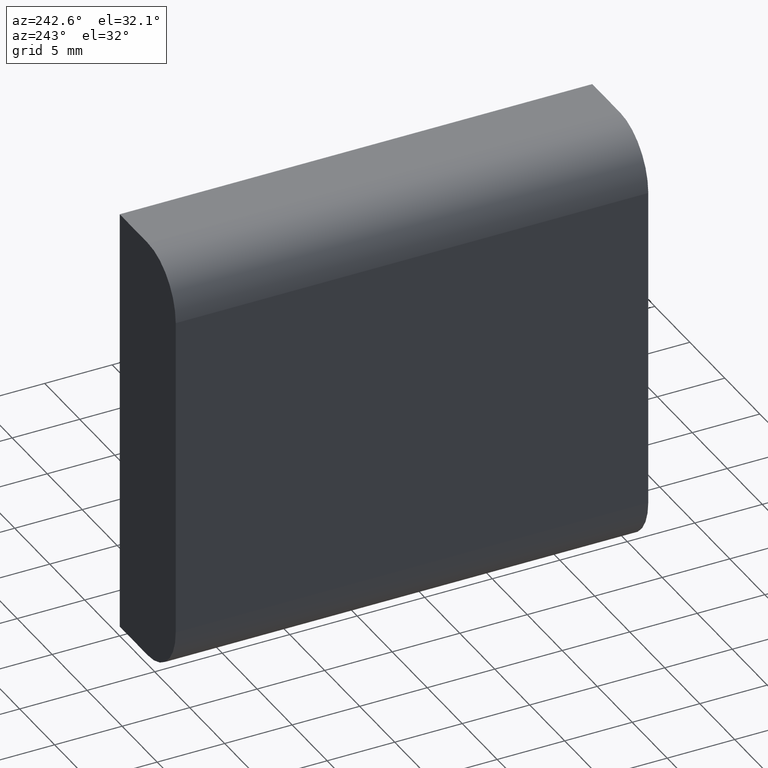
[diagram: clean part render]
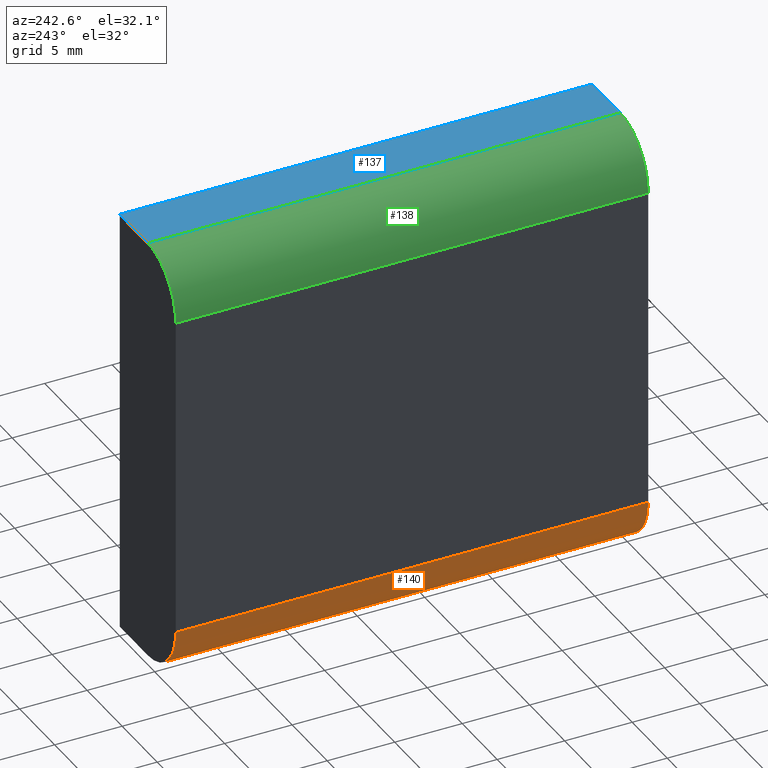
[diagram: same view with three faces highlighted in distinct colors, each labeled with its STEP entity id]
A machine part, auxiliary view with three faces highlighted in distinct colors.
Their STEP definitions:

[orange] entity #140 — the highlighted cylindrical surface (partial cylindrical patch) has radius 4 mm, axis along (0, 1, 0).
#17=CIRCLE('',#174,4.);
#18=CIRCLE('',#175,4.);
#20=CYLINDRICAL_SURFACE('',#173,4.);
#24=FACE_OUTER_BOUND('',#32,.T.);
#32=EDGE_LOOP('',(#107,#108,#109,#110));
#44=LINE('',#241,#58);
#45=LINE('',#247,#59);
#58=VECTOR('',#199,10.);
#59=VECTOR('',#206,10.);
#71=VERTEX_POINT('',#237);
#72=VERTEX_POINT('',#239);
#73=VERTEX_POINT('',#243);
#74=VERTEX_POINT('',#245);
#86=EDGE_CURVE('',#71,#72,#44,.T.);
#87=EDGE_CURVE('',#73,#71,#17,.T.);
#88=EDGE_CURVE('',#74,#72,#18,.T.);
#89=EDGE_CURVE('',#73,#74,#45,.T.);
#107=ORIENTED_EDGE('',*,*,#87,.T.);
#108=ORIENTED_EDGE('',*,*,#86,.T.);
#109=ORIENTED_EDGE('',*,*,#88,.F.);
#110=ORIENTED_EDGE('',*,*,#89,.F.);
#140=ADVANCED_FACE('',(#24),#20,.T.);
#173=AXIS2_PLACEMENT_3D('',#242,#200,#201);
#174=AXIS2_PLACEMENT_3D('',#244,#202,#203);
#175=AXIS2_PLACEMENT_3D('',#246,#204,#205);
#199=DIRECTION('',(0.,1.,0.));
#200=DIRECTION('center_axis',(0.,1.,0.));
#201=DIRECTION('ref_axis',(0.,0.,-1.));
#202=DIRECTION('center_axis',(0.,1.,0.));
#203=DIRECTION('ref_axis',(0.,0.,-1.));
#204=DIRECTION('center_axis',(0.,1.,0.));
#205=DIRECTION('ref_axis',(0.,0.,-1.));
#206=DIRECTION('',(0.,1.,0.));
#237=CARTESIAN_POINT('',(-8.,0.,-12.));
#239=CARTESIAN_POINT('',(-8.,35.,-12.));
#241=CARTESIAN_POINT('',(-8.,0.,-12.));
#242=CARTESIAN_POINT('Origin',(-4.,0.,-12.));
#243=CARTESIAN_POINT('',(-4.,0.,-16.));
#244=CARTESIAN_POINT('Origin',(-4.,0.,-12.));
#245=CARTESIAN_POINT('',(-4.,35.,-16.));
#246=CARTESIAN_POINT('Origin',(-4.,35.,-12.));
#247=CARTESIAN_POINT('',(-4.,0.,-16.));

[blue] entity #137 — the highlighted planar face has unit normal (0, 0, 1).
#21=FACE_OUTER_BOUND('',#29,.T.);
#29=EDGE_LOOP('',(#95,#96,#97,#98));
#37=LINE('',#224,#51);
#38=LINE('',#226,#52);
#39=LINE('',#228,#53);
#40=LINE('',#229,#54);
#51=VECTOR('',#184,10.);
#52=VECTOR('',#185,10.);
#53=VECTOR('',#186,10.);
#54=VECTOR('',#187,10.);
#65=VERTEX_POINT('',#222);
#66=VERTEX_POINT('',#223);
#67=VERTEX_POINT('',#225);
#68=VERTEX_POINT('',#227);
#77=EDGE_CURVE('',#65,#66,#37,.T.);
#78=EDGE_CURVE('',#66,#67,#38,.T.);
#79=EDGE_CURVE('',#68,#67,#39,.T.);
#80=EDGE_CURVE('',#65,#68,#40,.T.);
#95=ORIENTED_EDGE('',*,*,#77,.T.);
#96=ORIENTED_EDGE('',*,*,#78,.T.);
#97=ORIENTED_EDGE('',*,*,#79,.F.);
#98=ORIENTED_EDGE('',*,*,#80,.F.);
#131=PLANE('',#168);
#137=ADVANCED_FACE('',(#21),#131,.T.);
#168=AXIS2_PLACEMENT_3D('',#221,#182,#183);
#182=DIRECTION('center_axis',(0.,0.,1.));
#183=DIRECTION('ref_axis',(1.,0.,0.));
#184=DIRECTION('',(1.,0.,0.));
#185=DIRECTION('',(0.,1.,0.));
#186=DIRECTION('',(1.,0.,0.));
#187=DIRECTION('',(0.,1.,0.));
#221=CARTESIAN_POINT('Origin',(-4.,0.,16.));
#222=CARTESIAN_POINT('',(-4.,0.,16.));
#223=CARTESIAN_POINT('',(0.,0.,16.));
#224=CARTESIAN_POINT('',(-4.,0.,16.));
#225=CARTESIAN_POINT('',(0.,35.,16.));
#226=CARTESIAN_POINT('',(0.,0.,16.));
#227=CARTESIAN_POINT('',(-4.,35.,16.));
#228=CARTESIAN_POINT('',(-4.,35.,16.));
#229=CARTESIAN_POINT('',(-4.,0.,16.));

[green] entity #138 — the highlighted cylindrical surface (partial cylindrical patch) has radius 4 mm, axis along (0, 1, 0).
#15=CIRCLE('',#170,4.);
#16=CIRCLE('',#171,4.);
#19=CYLINDRICAL_SURFACE('',#169,4.);
#22=FACE_OUTER_BOUND('',#30,.T.);
#30=EDGE_LOOP('',(#99,#100,#101,#102));
#40=LINE('',#229,#54);
#41=LINE('',#235,#55);
#54=VECTOR('',#187,10.);
#55=VECTOR('',#194,10.);
#65=VERTEX_POINT('',#222);
#68=VERTEX_POINT('',#227);
#69=VERTEX_POINT('',#231);
#70=VERTEX_POINT('',#233);
#80=EDGE_CURVE('',#65,#68,#40,.T.);
#81=EDGE_CURVE('',#69,#65,#15,.T.);
#82=EDGE_CURVE('',#70,#68,#16,.T.);
#83=EDGE_CURVE('',#69,#70,#41,.T.);
#99=ORIENTED_EDGE('',*,*,#81,.T.);
#100=ORIENTED_EDGE('',*,*,#80,.T.);
#101=ORIENTED_EDGE('',*,*,#82,.F.);
#102=ORIENTED_EDGE('',*,*,#83,.F.);
#138=ADVANCED_FACE('',(#22),#19,.T.);
#169=AXIS2_PLACEMENT_3D('',#230,#188,#189);
#170=AXIS2_PLACEMENT_3D('',#232,#190,#191);
#171=AXIS2_PLACEMENT_3D('',#234,#192,#193);
#187=DIRECTION('',(0.,1.,0.));
#188=DIRECTION('center_axis',(0.,1.,0.));
#189=DIRECTION('ref_axis',(-1.,0.,0.));
#190=DIRECTION('center_axis',(0.,1.,0.));
#191=DIRECTION('ref_axis',(-1.,0.,0.));
#192=DIRECTION('center_axis',(0.,1.,0.));
#193=DIRECTION('ref_axis',(-1.,0.,0.));
#194=DIRECTION('',(0.,1.,0.));
#222=CARTESIAN_POINT('',(-4.,0.,16.));
#227=CARTESIAN_POINT('',(-4.,35.,16.));
#229=CARTESIAN_POINT('',(-4.,0.,16.));
#230=CARTESIAN_POINT('Origin',(-4.,0.,12.));
#231=CARTESIAN_POINT('',(-8.,0.,12.));
#232=CARTESIAN_POINT('Origin',(-4.,0.,12.));
#233=CARTESIAN_POINT('',(-8.,35.,12.));
#234=CARTESIAN_POINT('Origin',(-4.,35.,12.));
#235=CARTESIAN_POINT('',(-8.,0.,12.));